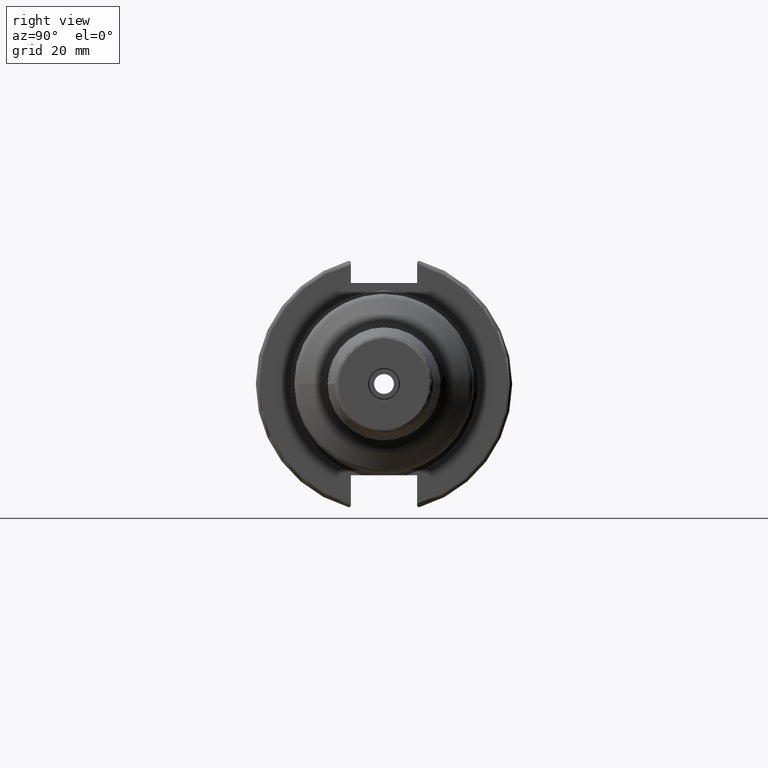
[diagram: clean part render]
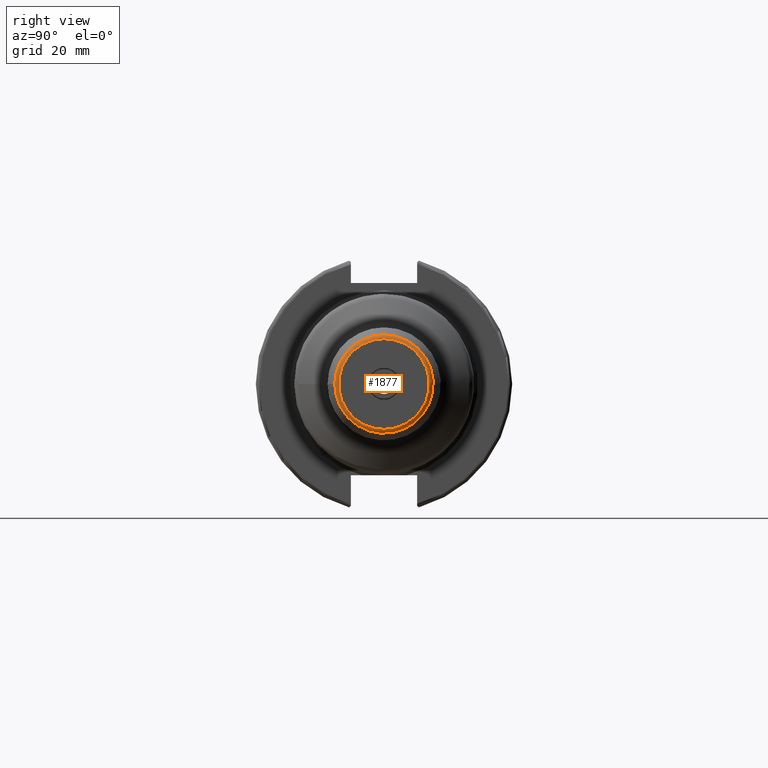
[diagram: same view with one face highlighted and labeled with its STEP entity id]
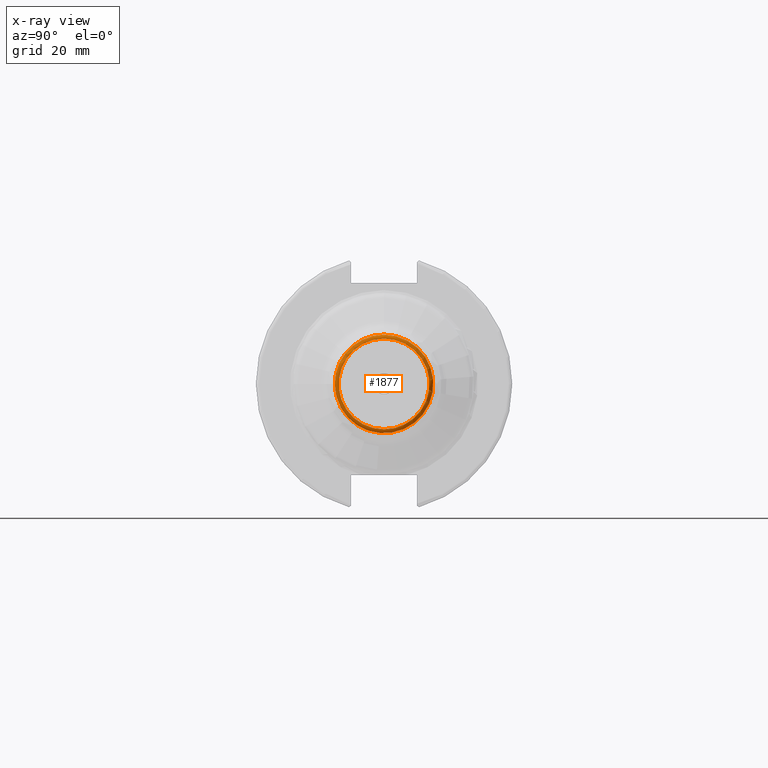
[diagram: x-ray of the same camera — body ghosted, the highlighted face saturated]
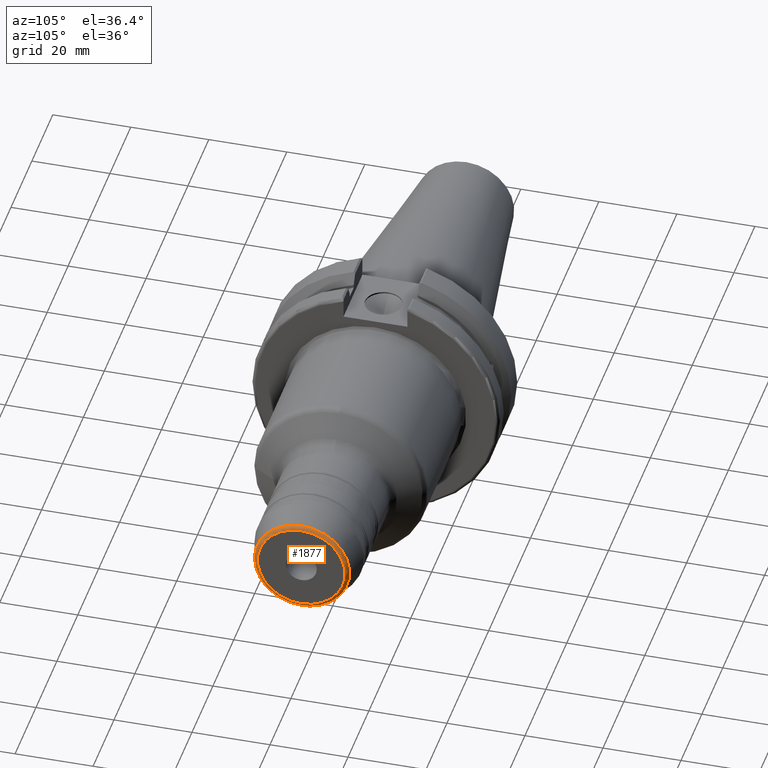
[diagram: same view with one face highlighted and labeled with its STEP entity id]
A machine part, right view. The second image highlights one B-rep face of the part: STEP entity #1877.
The next image is the same camera in x-ray: the body ghosted, the highlighted face saturated — about 0% of this face is hidden behind the body in this view.
A second angle (auxiliary view) of the same face is appended — the face is thin or edge-on in the first view.
In plain terms, the highlighted toroidal blend (fillet) surface has major radius 11.2327 mm and minor (blend) radius 1 mm.
Its self-contained STEP definition (entity closure, byte-faithful):
#403=FACE_OUTER_BOUND('',#511,.T.);
#511=EDGE_LOOP('',(#1383,#1384,#1385,#1386,#1387));
#669=CIRCLE('',#2067,12.1985988383101);
#670=CIRCLE('',#2068,12.1985988383101);
#671=CIRCLE('',#2070,11.232673012021);
#672=CIRCLE('',#2071,1.);
#792=VERTEX_POINT('',#3014);
#793=VERTEX_POINT('',#3015);
#794=VERTEX_POINT('',#3020);
#1012=EDGE_CURVE('',#792,#793,#669,.T.);
#1014=EDGE_CURVE('',#793,#792,#670,.T.);
#1015=EDGE_CURVE('',#794,#794,#671,.T.);
#1016=EDGE_CURVE('',#794,#793,#672,.T.);
#1383=ORIENTED_EDGE('',*,*,#1015,.T.);
#1384=ORIENTED_EDGE('',*,*,#1016,.T.);
#1385=ORIENTED_EDGE('',*,*,#1014,.T.);
#1386=ORIENTED_EDGE('',*,*,#1012,.T.);
#1387=ORIENTED_EDGE('',*,*,#1016,.F.);
#1846=TOROIDAL_SURFACE('',#2069,11.232673012021,1.);
#1877=ADVANCED_FACE('',(#403),#1846,.T.);
#2067=AXIS2_PLACEMENT_3D('',#3016,#2422,#2423);
#2068=AXIS2_PLACEMENT_3D('',#3018,#2425,#2426);
#2069=AXIS2_PLACEMENT_3D('',#3019,#2427,#2428);
#2070=AXIS2_PLACEMENT_3D('',#3021,#2429,#2430);
#2071=AXIS2_PLACEMENT_3D('',#3022,#2431,#2432);
#2422=DIRECTION('center_axis',(1.,0.,0.));
#2423=DIRECTION('ref_axis',(0.,-1.,3.06161699786838E-17));
#2425=DIRECTION('center_axis',(1.,0.,0.));
#2426=DIRECTION('ref_axis',(0.,-1.,3.06161699786838E-17));
#2427=DIRECTION('center_axis',(1.,0.,0.));
#2428=DIRECTION('ref_axis',(0.,0.,-1.));
#2429=DIRECTION('center_axis',(-1.,0.,0.));
#2430=DIRECTION('ref_axis',(0.,-1.,1.83697019872103E-16));
#2431=DIRECTION('center_axis',(0.,-1.,-1.22464679914735E-16));
#2432=DIRECTION('ref_axis',(0.,-1.22464679914735E-16,1.));
#3014=CARTESIAN_POINT('',(89.2588190451025,-12.1985988383101,-1.49389750214191E-15));
#3015=CARTESIAN_POINT('',(89.2588190451025,-1.49389750214191E-15,12.1985988383101));
#3016=CARTESIAN_POINT('Origin',(89.2588190451025,0.,-1.86737187767739E-15));
#3018=CARTESIAN_POINT('Origin',(89.2588190451025,0.,-1.86737187767739E-15));
#3019=CARTESIAN_POINT('Origin',(89.,0.,0.));
#3020=CARTESIAN_POINT('',(90.,-1.37560570500404E-15,11.232673012021));
#3021=CARTESIAN_POINT('Origin',(90.,0.,0.));
#3022=CARTESIAN_POINT('Origin',(89.,-1.37560570500404E-15,11.232673012021));